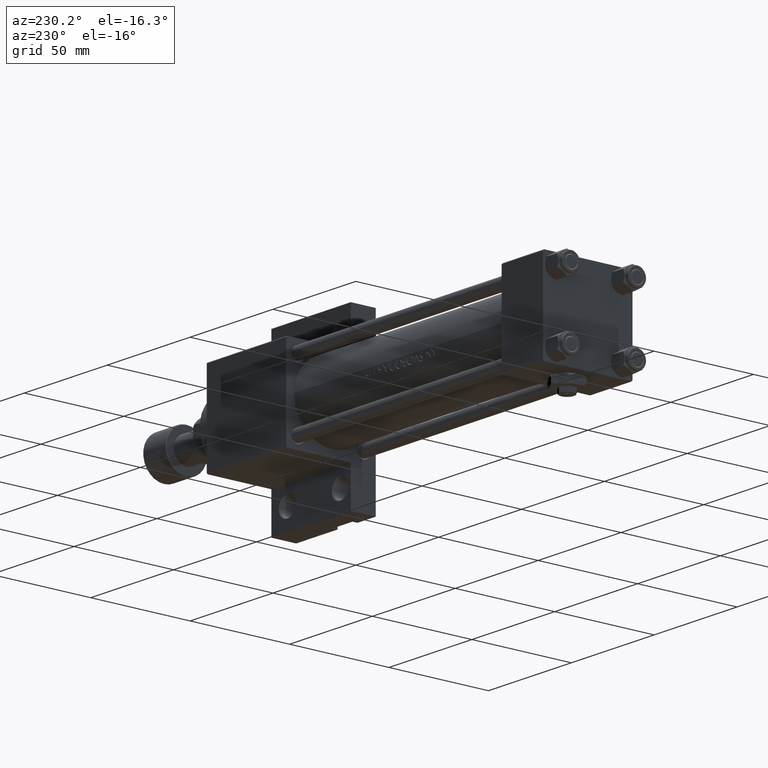
[diagram: clean part render]
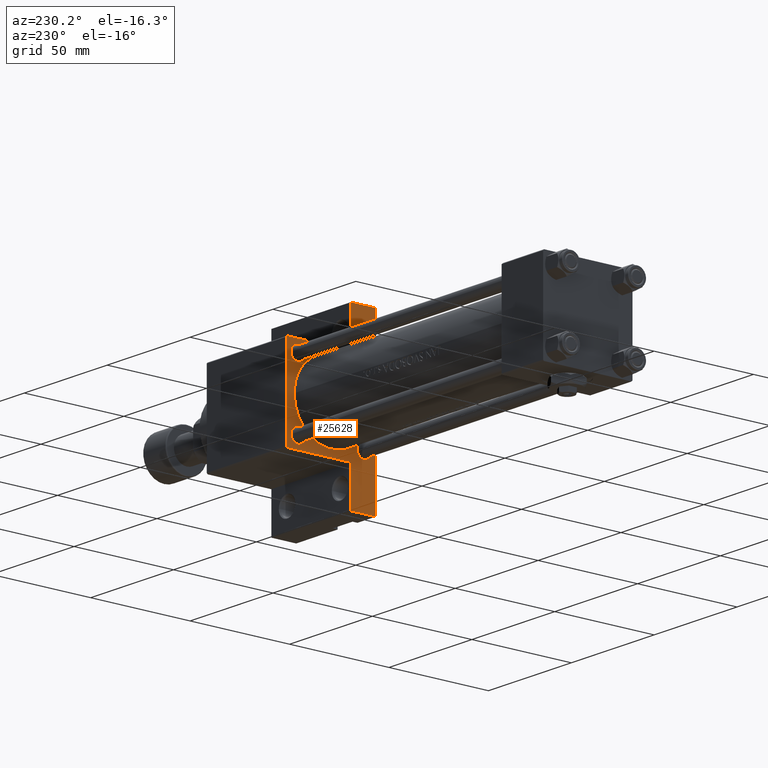
[diagram: same view with one face highlighted and labeled with its STEP entity id]
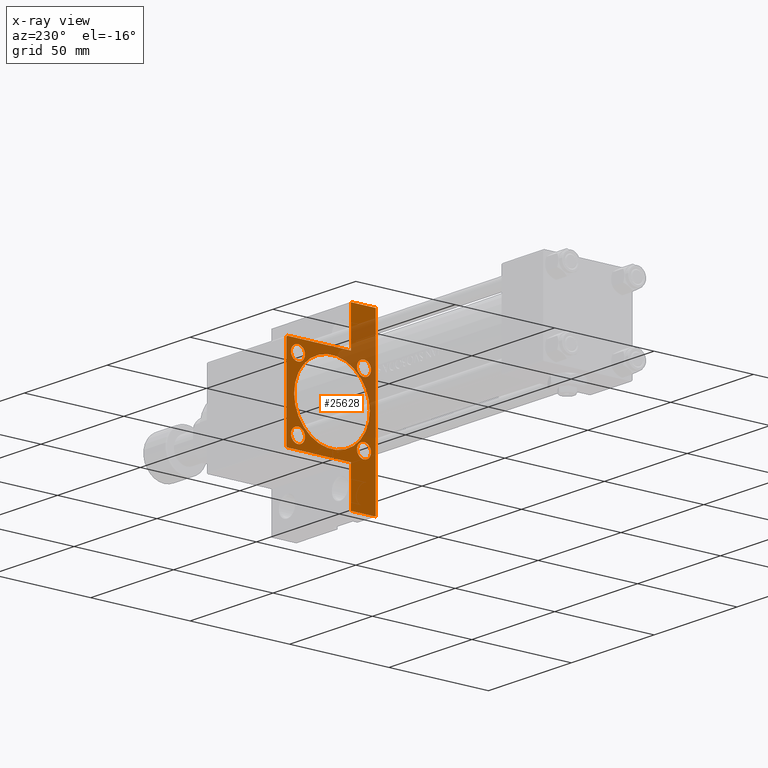
[diagram: x-ray of the same camera — body ghosted, the highlighted face saturated]
A machine part, auxiliary view. The second image highlights one B-rep face of the part: STEP entity #25628.
The next image is the same camera in x-ray: the body ghosted, the highlighted face saturated — about 29% of this face is hidden behind the body in this view.
In plain terms, the highlighted planar face has unit normal (-1, 0, -0).
Its self-contained STEP definition (entity closure, byte-faithful):
#180 = VECTOR ( 'NONE', #19837, 1000.000000000000000 ) ;
#603 = LINE ( 'NONE', #35854, #38651 ) ;
#765 = CIRCLE ( 'NONE', #30522, 19.00000000000000000 ) ;
#824 = VERTEX_POINT ( 'NONE', #49598 ) ;
#829 = DIRECTION ( 'NONE',  ( 1.000000000000000000, -0.000000000000000000, 0.000000000000000000 ) ) ;
#1174 = VERTEX_POINT ( 'NONE', #27587 ) ;
#1594 = EDGE_CURVE ( 'NONE', #31679, #17024, #28147, .T. ) ;
#1902 = AXIS2_PLACEMENT_3D ( 'NONE', #2575, #41826, #33777 ) ;
#2193 = EDGE_CURVE ( 'NONE', #17875, #1174, #34339, .T. ) ;
#2399 = CARTESIAN_POINT ( 'NONE',  ( 155.0000000000000000, 16.59999999999999787, 20.10000000000000853 ) ) ;
#2575 = CARTESIAN_POINT ( 'NONE',  ( 155.0000000000000000, -16.59999999999999076, 16.60000000000000853 ) ) ;
#2685 = CARTESIAN_POINT ( 'NONE',  ( 155.0000000000000000, -16.59999999999999076, 16.60000000000000853 ) ) ;
#2739 = CIRCLE ( 'NONE', #1902, 3.500000000000003109 ) ;
#3232 = ORIENTED_EDGE ( 'NONE', *, *, #28461, .T. ) ;
#3374 = VERTEX_POINT ( 'NONE', #42569 ) ;
#3561 = DIRECTION ( 'NONE',  ( 0.000000000000000000, 0.000000000000000000, -1.000000000000000000 ) ) ;
#3665 = DIRECTION ( 'NONE',  ( 0.000000000000000000, 0.000000000000000000, -1.000000000000000000 ) ) ;
#4238 = LINE ( 'NONE', #11806, #180 ) ;
#4263 = CARTESIAN_POINT ( 'NONE',  ( 155.0000000000000000, -16.59999999999999076, -20.10000000000001208 ) ) ;
#4629 = CARTESIAN_POINT ( 'NONE',  ( 155.0000000000000000, -42.00000000000000711, -22.50000000000000000 ) ) ;
#4641 = DIRECTION ( 'NONE',  ( 0.000000000000000000, 0.000000000000000000, -1.000000000000000000 ) ) ;
#4939 = VECTOR ( 'NONE', #3665, 1000.000000000000000 ) ;
#5602 = EDGE_CURVE ( 'NONE', #7303, #38813, #41923, .T. ) ;
#5683 = VERTEX_POINT ( 'NONE', #22485 ) ;
#6647 = FACE_BOUND ( 'NONE', #16124, .T. ) ;
#6717 = AXIS2_PLACEMENT_3D ( 'NONE', #16934, #829, #39115 ) ;
#6782 = CARTESIAN_POINT ( 'NONE',  ( 155.0000000000000000, -16.59999999999999076, -13.10000000000000142 ) ) ;
#7284 = CARTESIAN_POINT ( 'NONE',  ( 155.0000000000000000, -22.50000000000000000, -9.999999999999998224 ) ) ;
#7303 = VERTEX_POINT ( 'NONE', #14391 ) ;
#7330 = AXIS2_PLACEMENT_3D ( 'NONE', #21549, #14248, #29618 ) ;
#7931 = CIRCLE ( 'NONE', #15158, 3.500000000000003109 ) ;
#8666 = DIRECTION ( 'NONE',  ( 0.000000000000000000, 0.000000000000000000, -1.000000000000000000 ) ) ;
#8881 = LINE ( 'NONE', #31035, #24522 ) ;
#9680 = AXIS2_PLACEMENT_3D ( 'NONE', #17095, #10818, #25915 ) ;
#9999 = DIRECTION ( 'NONE',  ( 1.000000000000000000, -0.000000000000000000, 0.000000000000000000 ) ) ;
#10168 = EDGE_CURVE ( 'NONE', #42959, #11631, #16356, .T. ) ;
#10818 = DIRECTION ( 'NONE',  ( 1.000000000000000000, -0.000000000000000000, 0.000000000000000000 ) ) ;
#10921 = DIRECTION ( 'NONE',  ( 1.000000000000000000, 0.000000000000000000, 0.000000000000000000 ) ) ;
#11092 = EDGE_LOOP ( 'NONE', ( #17089, #49157 ) ) ;
#11300 = CARTESIAN_POINT ( 'NONE',  ( 155.0000000000000000, 16.59999999999999787, -20.10000000000000853 ) ) ;
#11631 = VERTEX_POINT ( 'NONE', #38266 ) ;
#11806 = CARTESIAN_POINT ( 'NONE',  ( 155.0000000000000000, 41.99999999999999289, -9.999999999999998224 ) ) ;
#11933 = DIRECTION ( 'NONE',  ( 1.000000000000000000, 0.000000000000000000, 0.000000000000000000 ) ) ;
#12421 = CARTESIAN_POINT ( 'NONE',  ( 155.0000000000000000, 22.50000000000000355, 22.50000000000000355 ) ) ;
#13016 = DIRECTION ( 'NONE',  ( 0.000000000000000000, 0.000000000000000000, 1.000000000000000000 ) ) ;
#13054 = EDGE_CURVE ( 'NONE', #17875, #38259, #8881, .T. ) ;
#13122 = LINE ( 'NONE', #47841, #31118 ) ;
#13178 = DIRECTION ( 'NONE',  ( 1.000000000000000000, -0.000000000000000000, 0.000000000000000000 ) ) ;
#13347 = VECTOR ( 'NONE', #46857, 1000.000000000000000 ) ;
#13368 = CIRCLE ( 'NONE', #32629, 19.00000000000000000 ) ;
#13643 = EDGE_LOOP ( 'NONE', ( #28663, #20014 ) ) ;
#13683 = FACE_BOUND ( 'NONE', #21199, .T. ) ;
#13758 = DIRECTION ( 'NONE',  ( 0.000000000000000000, 0.000000000000000000, 1.000000000000000000 ) ) ;
#14142 = VERTEX_POINT ( 'NONE', #23923 ) ;
#14208 = CIRCLE ( 'NONE', #19047, 3.500000000000006661 ) ;
#14248 = DIRECTION ( 'NONE',  ( 1.000000000000000000, -0.000000000000000000, 0.000000000000000000 ) ) ;
#14341 = ORIENTED_EDGE ( 'NONE', *, *, #16533, .T. ) ;
#14353 = VERTEX_POINT ( 'NONE', #7284 ) ;
#14391 = CARTESIAN_POINT ( 'NONE',  ( 155.0000000000000000, -42.00000000000000711, -9.999999999999998224 ) ) ;
#15158 = AXIS2_PLACEMENT_3D ( 'NONE', #2685, #9999, #13758 ) ;
#15196 = DIRECTION ( 'NONE',  ( 0.000000000000000000, -1.000000000000000000, -2.312964634635742957E-16 ) ) ;
#15500 = DIRECTION ( 'NONE',  ( 1.000000000000000000, -0.000000000000000000, 0.000000000000000000 ) ) ;
#16124 = EDGE_LOOP ( 'NONE', ( #20624, #40235 ) ) ;
#16356 = CIRCLE ( 'NONE', #6717, 3.500000000000006661 ) ;
#16513 = ORIENTED_EDGE ( 'NONE', *, *, #35489, .T. ) ;
#16533 = EDGE_CURVE ( 'NONE', #48285, #38813, #23969, .T. ) ;
#16934 = CARTESIAN_POINT ( 'NONE',  ( 155.0000000000000000, 16.59999999999999787, -16.60000000000000497 ) ) ;
#17024 = VERTEX_POINT ( 'NONE', #6782 ) ;
#17089 = ORIENTED_EDGE ( 'NONE', *, *, #25922, .T. ) ;
#17095 = CARTESIAN_POINT ( 'NONE',  ( 155.0000000000000000, -16.59999999999999076, -16.60000000000000853 ) ) ;
#17191 = DIRECTION ( 'NONE',  ( 0.000000000000000000, 0.000000000000000000, -1.000000000000000000 ) ) ;
#17875 = VERTEX_POINT ( 'NONE', #27908 ) ;
#17910 = VERTEX_POINT ( 'NONE', #45475 ) ;
#19047 = AXIS2_PLACEMENT_3D ( 'NONE', #24759, #13178, #39378 ) ;
#19157 = EDGE_CURVE ( 'NONE', #38259, #25544, #24511, .T. ) ;
#19162 = EDGE_CURVE ( 'NONE', #17024, #31679, #14208, .T. ) ;
#19714 = AXIS2_PLACEMENT_3D ( 'NONE', #29807, #21987, #45126 ) ;
#19837 = DIRECTION ( 'NONE',  ( -0.000000000000000000, 1.000000000000000000, -0.000000000000000000 ) ) ;
#20014 = ORIENTED_EDGE ( 'NONE', *, *, #1594, .T. ) ;
#20624 = ORIENTED_EDGE ( 'NONE', *, *, #40995, .T. ) ;
#20768 = DIRECTION ( 'NONE',  ( -0.000000000000000000, 0.7071067811865474617, 0.7071067811865474617 ) ) ;
#20934 = EDGE_CURVE ( 'NONE', #14142, #45025, #2739, .T. ) ;
#21199 = EDGE_LOOP ( 'NONE', ( #48761, #44987 ) ) ;
#21237 = FACE_OUTER_BOUND ( 'NONE', #23623, .T. ) ;
#21483 = AXIS2_PLACEMENT_3D ( 'NONE', #47488, #32153, #13016 ) ;
#21549 = CARTESIAN_POINT ( 'NONE',  ( 155.0000000000000000, 16.59999999999999787, 16.60000000000000497 ) ) ;
#21617 = EDGE_CURVE ( 'NONE', #824, #37640, #42898, .T. ) ;
#21725 = CARTESIAN_POINT ( 'NONE',  ( 155.0000000000000000, 6.123233995736727825E-17, 18.50000000000000355 ) ) ;
#21770 = CIRCLE ( 'NONE', #7330, 3.499999999999999556 ) ;
#21987 = DIRECTION ( 'NONE',  ( -1.000000000000000000, 0.000000000000000000, -0.000000000000000000 ) ) ;
#22485 = CARTESIAN_POINT ( 'NONE',  ( 155.0000000000000000, 41.99999999999999289, -9.999999999999998224 ) ) ;
#23623 = EDGE_LOOP ( 'NONE', ( #27349, #43010, #46822, #38662, #34717, #14341, #26994, #3232, #45447, #43571 ) ) ;
#23671 = CARTESIAN_POINT ( 'NONE',  ( 155.0000000000000000, -22.49999999999999645, 22.49999999999999289 ) ) ;
#23923 = CARTESIAN_POINT ( 'NONE',  ( 155.0000000000000000, -16.59999999999999076, 13.10000000000000142 ) ) ;
#23951 = CARTESIAN_POINT ( 'NONE',  ( 155.0000000000000000, 41.99999999999999289, -22.50000000000000000 ) ) ;
#23969 = LINE ( 'NONE', #46109, #13347 ) ;
#24511 = LINE ( 'NONE', #39130, #41479 ) ;
#24522 = VECTOR ( 'NONE', #42846, 1000.000000000000114 ) ;
#24759 = CARTESIAN_POINT ( 'NONE',  ( 155.0000000000000000, -16.59999999999999076, -16.60000000000000853 ) ) ;
#25016 = FACE_BOUND ( 'NONE', #13643, .T. ) ;
#25544 = VERTEX_POINT ( 'NONE', #35856 ) ;
#25628 = ADVANCED_FACE ( 'NONE', ( #48660, #6647, #13683, #25016, #44634, #21237 ), #48155, .T. ) ;
#25915 = DIRECTION ( 'NONE',  ( 0.000000000000000000, 0.000000000000000000, 1.000000000000000000 ) ) ;
#25922 = EDGE_CURVE ( 'NONE', #39001, #17910, #13368, .T. ) ;
#26819 = CARTESIAN_POINT ( 'NONE',  ( 155.0000000000000000, -42.00000000000000711, -9.999999999999998224 ) ) ;
#26994 = ORIENTED_EDGE ( 'NONE', *, *, #5602, .F. ) ;
#27164 = VECTOR ( 'NONE', #3561, 1000.000000000000000 ) ;
#27349 = ORIENTED_EDGE ( 'NONE', *, *, #2193, .F. ) ;
#27587 = CARTESIAN_POINT ( 'NONE',  ( 155.0000000000000000, -21.99999999999995381, 22.49999999999999289 ) ) ;
#27908 = CARTESIAN_POINT ( 'NONE',  ( 155.0000000000000000, 22.00000000000000355, 22.50000000000000355 ) ) ;
#28147 = CIRCLE ( 'NONE', #9680, 3.500000000000006661 ) ;
#28461 = EDGE_CURVE ( 'NONE', #7303, #14353, #13122, .T. ) ;
#28663 = ORIENTED_EDGE ( 'NONE', *, *, #19162, .T. ) ;
#28984 = DIRECTION ( 'NONE',  ( 0.000000000000000000, 1.000000000000000000, 0.000000000000000000 ) ) ;
#29421 = ORIENTED_EDGE ( 'NONE', *, *, #20934, .T. ) ;
#29618 = DIRECTION ( 'NONE',  ( 0.000000000000000000, 0.000000000000000000, 1.000000000000000000 ) ) ;
#29807 = CARTESIAN_POINT ( 'NONE',  ( 155.0000000000000000, 0.000000000000000000, 0.000000000000000000 ) ) ;
#30034 = EDGE_CURVE ( 'NONE', #11631, #42959, #33559, .T. ) ;
#30522 = AXIS2_PLACEMENT_3D ( 'NONE', #46149, #11933, #8666 ) ;
#30874 = DIRECTION ( 'NONE',  ( 0.000000000000000000, 0.000000000000000000, 1.000000000000000000 ) ) ;
#31035 = CARTESIAN_POINT ( 'NONE',  ( 155.0000000000000000, 22.25000000000000355, 22.25000000000000355 ) ) ;
#31059 = CARTESIAN_POINT ( 'NONE',  ( 155.0000000000000000, -16.59999999999999076, 20.10000000000001208 ) ) ;
#31118 = VECTOR ( 'NONE', #28984, 1000.000000000000000 ) ;
#31468 = VECTOR ( 'NONE', #20768, 1000.000000000000114 ) ;
#31679 = VERTEX_POINT ( 'NONE', #4263 ) ;
#32153 = DIRECTION ( 'NONE',  ( 1.000000000000000000, -0.000000000000000000, 0.000000000000000000 ) ) ;
#32494 = CARTESIAN_POINT ( 'NONE',  ( 155.0000000000000000, 22.50000000000000355, 22.00000000000000355 ) ) ;
#32629 = AXIS2_PLACEMENT_3D ( 'NONE', #49404, #10921, #38093 ) ;
#33559 = CIRCLE ( 'NONE', #21483, 3.500000000000006661 ) ;
#33703 = EDGE_CURVE ( 'NONE', #3374, #14353, #38045, .T. ) ;
#33777 = DIRECTION ( 'NONE',  ( 0.000000000000000000, 0.000000000000000000, 1.000000000000000000 ) ) ;
#34339 = LINE ( 'NONE', #12421, #43444 ) ;
#34717 = ORIENTED_EDGE ( 'NONE', *, *, #41181, .T. ) ;
#35489 = EDGE_CURVE ( 'NONE', #45025, #14142, #7931, .T. ) ;
#35854 = CARTESIAN_POINT ( 'NONE',  ( 155.0000000000000000, 41.99999999999999289, -9.999999999999998224 ) ) ;
#35856 = CARTESIAN_POINT ( 'NONE',  ( 155.0000000000000000, 22.50000000000000355, -9.999999999999984013 ) ) ;
#37640 = VERTEX_POINT ( 'NONE', #2399 ) ;
#37867 = EDGE_CURVE ( 'NONE', #17910, #39001, #765, .T. ) ;
#38045 = LINE ( 'NONE', #23671, #27164 ) ;
#38093 = DIRECTION ( 'NONE',  ( 0.000000000000000000, 0.000000000000000000, -1.000000000000000000 ) ) ;
#38259 = VERTEX_POINT ( 'NONE', #32494 ) ;
#38266 = CARTESIAN_POINT ( 'NONE',  ( 155.0000000000000000, 16.59999999999999787, -13.09999999999999787 ) ) ;
#38651 = VECTOR ( 'NONE', #4641, 1000.000000000000000 ) ;
#38662 = ORIENTED_EDGE ( 'NONE', *, *, #45580, .T. ) ;
#38813 = VERTEX_POINT ( 'NONE', #4629 ) ;
#39001 = VERTEX_POINT ( 'NONE', #21725 ) ;
#39115 = DIRECTION ( 'NONE',  ( 0.000000000000000000, 0.000000000000000000, 1.000000000000000000 ) ) ;
#39130 = CARTESIAN_POINT ( 'NONE',  ( 155.0000000000000000, 22.50000000000000355, 22.50000000000000355 ) ) ;
#39378 = DIRECTION ( 'NONE',  ( 0.000000000000000000, 0.000000000000000000, 1.000000000000000000 ) ) ;
#39544 = EDGE_LOOP ( 'NONE', ( #16513, #29421 ) ) ;
#40235 = ORIENTED_EDGE ( 'NONE', *, *, #21617, .T. ) ;
#40537 = AXIS2_PLACEMENT_3D ( 'NONE', #45473, #15500, #30874 ) ;
#40995 = EDGE_CURVE ( 'NONE', #37640, #824, #21770, .T. ) ;
#41181 = EDGE_CURVE ( 'NONE', #5683, #48285, #603, .T. ) ;
#41479 = VECTOR ( 'NONE', #17191, 1000.000000000000000 ) ;
#41826 = DIRECTION ( 'NONE',  ( 1.000000000000000000, -0.000000000000000000, 0.000000000000000000 ) ) ;
#41923 = LINE ( 'NONE', #26819, #4939 ) ;
#42569 = CARTESIAN_POINT ( 'NONE',  ( 155.0000000000000000, -22.49999999999999645, 21.99999999999996447 ) ) ;
#42846 = DIRECTION ( 'NONE',  ( 0.000000000000000000, 0.7071067811865474617, -0.7071067811865474617 ) ) ;
#42898 = CIRCLE ( 'NONE', #40537, 3.499999999999999556 ) ;
#42929 = LINE ( 'NONE', #46946, #31468 ) ;
#42959 = VERTEX_POINT ( 'NONE', #11300 ) ;
#43010 = ORIENTED_EDGE ( 'NONE', *, *, #13054, .T. ) ;
#43444 = VECTOR ( 'NONE', #15196, 1000.000000000000000 ) ;
#43571 = ORIENTED_EDGE ( 'NONE', *, *, #44624, .T. ) ;
#44624 = EDGE_CURVE ( 'NONE', #3374, #1174, #42929, .T. ) ;
#44634 = FACE_BOUND ( 'NONE', #11092, .T. ) ;
#44987 = ORIENTED_EDGE ( 'NONE', *, *, #10168, .T. ) ;
#45025 = VERTEX_POINT ( 'NONE', #31059 ) ;
#45126 = DIRECTION ( 'NONE',  ( -0.000000000000000000, 0.000000000000000000, 1.000000000000000000 ) ) ;
#45447 = ORIENTED_EDGE ( 'NONE', *, *, #33703, .F. ) ;
#45473 = CARTESIAN_POINT ( 'NONE',  ( 155.0000000000000000, 16.59999999999999787, 16.60000000000000497 ) ) ;
#45475 = CARTESIAN_POINT ( 'NONE',  ( 155.0000000000000000, 2.388061258337338150E-15, -19.49999999999999645 ) ) ;
#45580 = EDGE_CURVE ( 'NONE', #25544, #5683, #4238, .T. ) ;
#46109 = CARTESIAN_POINT ( 'NONE',  ( 155.0000000000000000, 22.50000000000000355, -22.49999999999999645 ) ) ;
#46149 = CARTESIAN_POINT ( 'NONE',  ( 155.0000000000000000, 6.123233995736727825E-17, -0.4999999999999970024 ) ) ;
#46822 = ORIENTED_EDGE ( 'NONE', *, *, #19157, .T. ) ;
#46857 = DIRECTION ( 'NONE',  ( 0.000000000000000000, -1.000000000000000000, -7.709882115452476934E-17 ) ) ;
#46946 = CARTESIAN_POINT ( 'NONE',  ( 155.0000000000000000, -22.24999999999997868, 22.24999999999997868 ) ) ;
#47488 = CARTESIAN_POINT ( 'NONE',  ( 155.0000000000000000, 16.59999999999999787, -16.60000000000000497 ) ) ;
#47841 = CARTESIAN_POINT ( 'NONE',  ( 155.0000000000000000, -42.00000000000000711, -9.999999999999998224 ) ) ;
#48155 = PLANE ( 'NONE',  #19714 ) ;
#48285 = VERTEX_POINT ( 'NONE', #23951 ) ;
#48660 = FACE_BOUND ( 'NONE', #39544, .T. ) ;
#48761 = ORIENTED_EDGE ( 'NONE', *, *, #30034, .T. ) ;
#49157 = ORIENTED_EDGE ( 'NONE', *, *, #37867, .T. ) ;
#49404 = CARTESIAN_POINT ( 'NONE',  ( 155.0000000000000000, 6.123233995736727825E-17, -0.4999999999999970024 ) ) ;
#49598 = CARTESIAN_POINT ( 'NONE',  ( 155.0000000000000000, 16.59999999999999787, 13.10000000000000142 ) ) ;